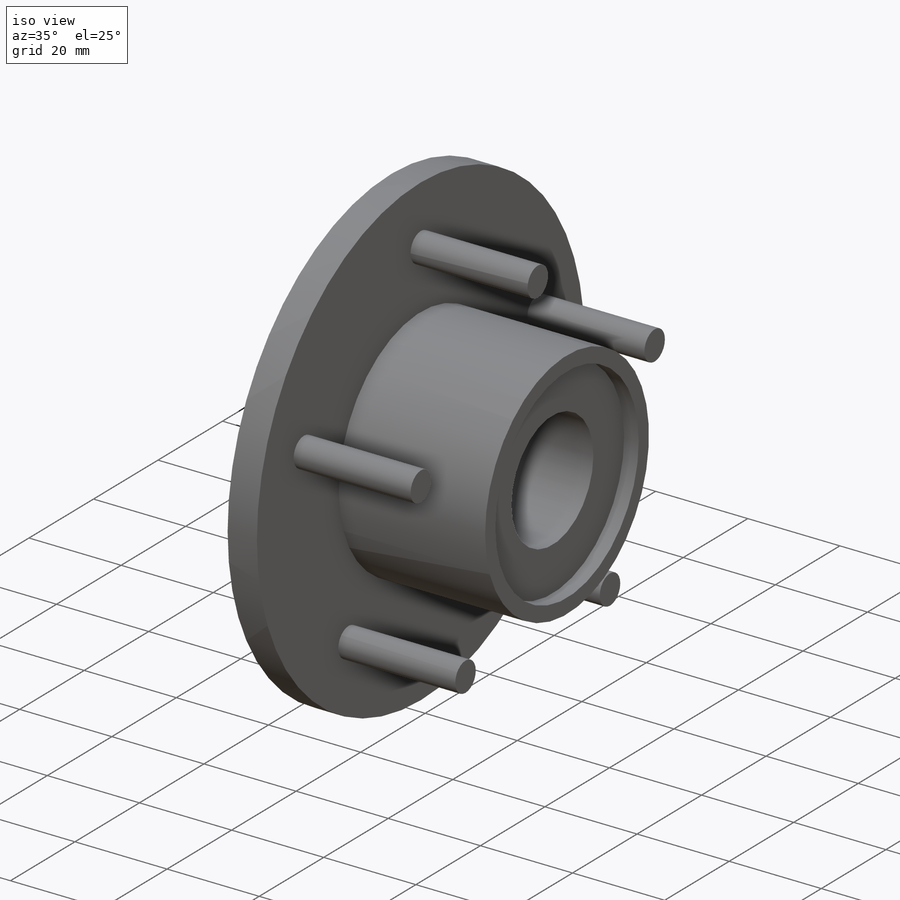
[diagram: iso view]
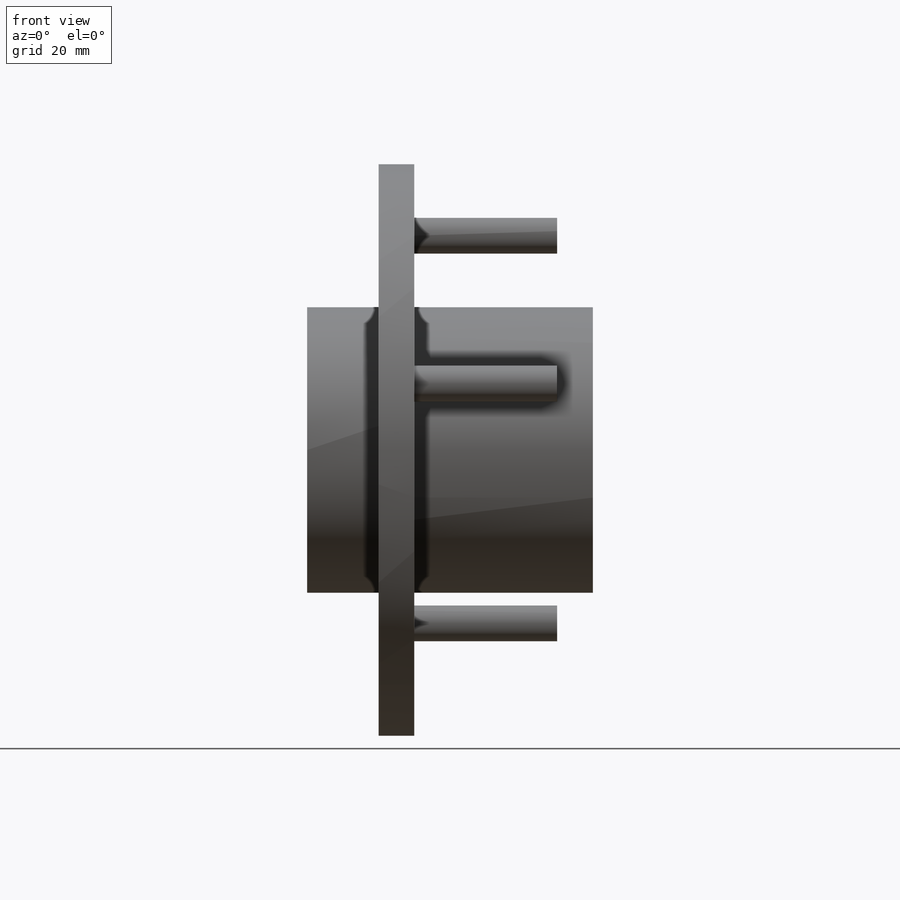
[diagram: front view]
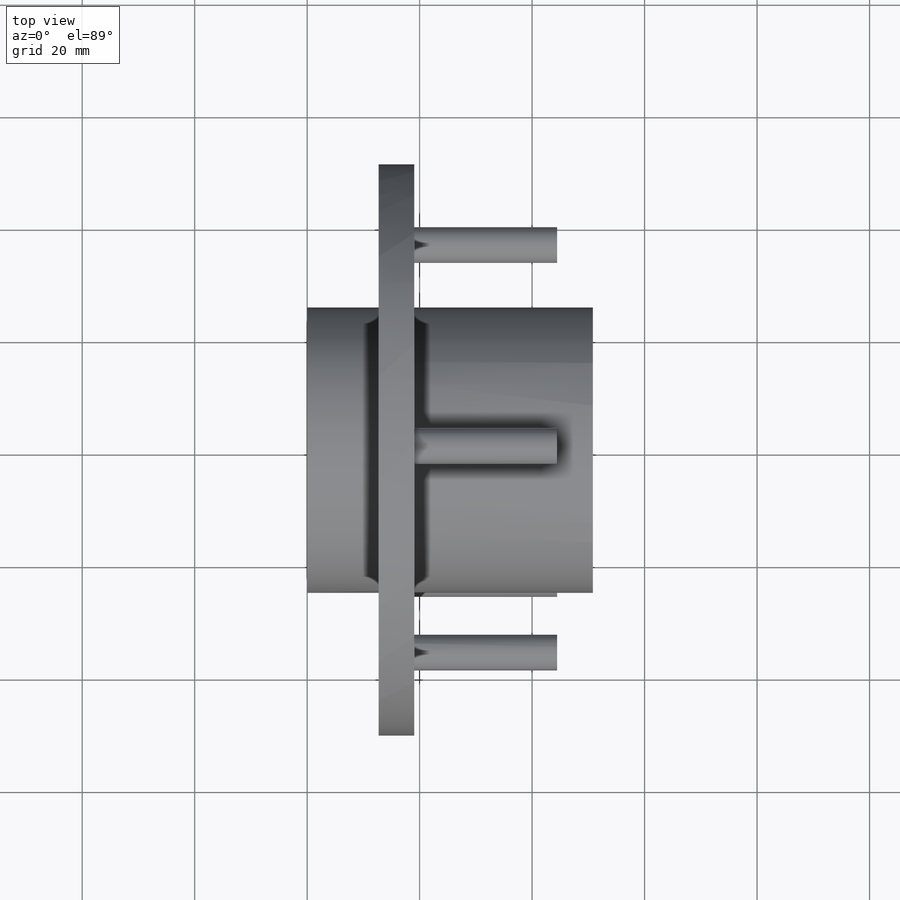
[diagram: top view]
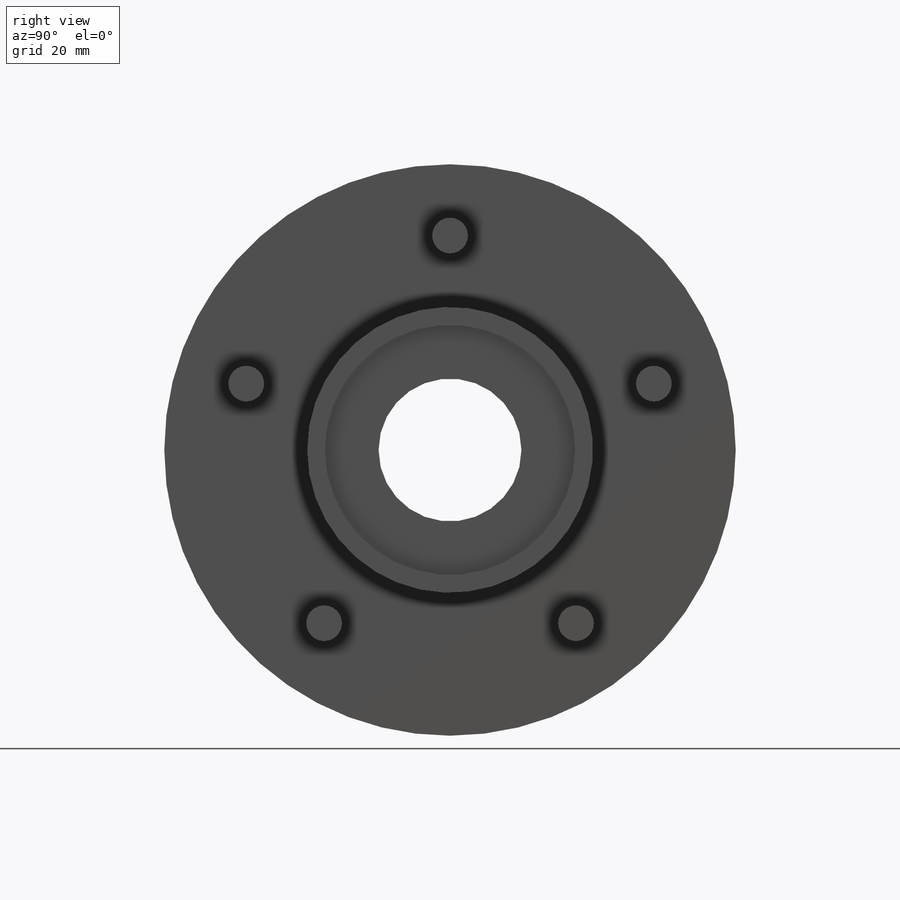
[diagram: right view]
SOLIDWORKS PART (.sldprt)
format: sldprt  version: not decoded by parser v0  size: 222,208 bytes
history: native  units: mm
features: sketch x2, material x1, revolve x1, extrude x1, pattern_circular x1 (+16 scaffold rows collapsed)
feature tree (22):
  scaffold x16  (default folders/planes/origin — collapsed)
  material  "Material <not specified>"
  sketch  "Sketch1"  dims[c1.D1=6.35mm c1.D2=12.7mm c1.D3=50.8mm c1.D4=3.175mm c1.D5=12.7mm c1.D6=3.175mm c1.D7=25.4mm c1.D8=50.8mm c1.D9=3.175mm c1.D10=3.175mm c2.D2=12.7mm]
  revolve  "Revolve1"  Angle=360deg
  sketch  "Sketch3"  dims[D1=6.35mm D2=38.1mm]
  extrude  "Boss-Extrude1"  Depth=25.4mm
  pattern_circular  "CirPattern3"  Count=5 Angle=360deg
decode coverage: 5 of 5 modeling features carry decoded parameters
note: suppression state not decoded; provenance and decode notes live in map.json
